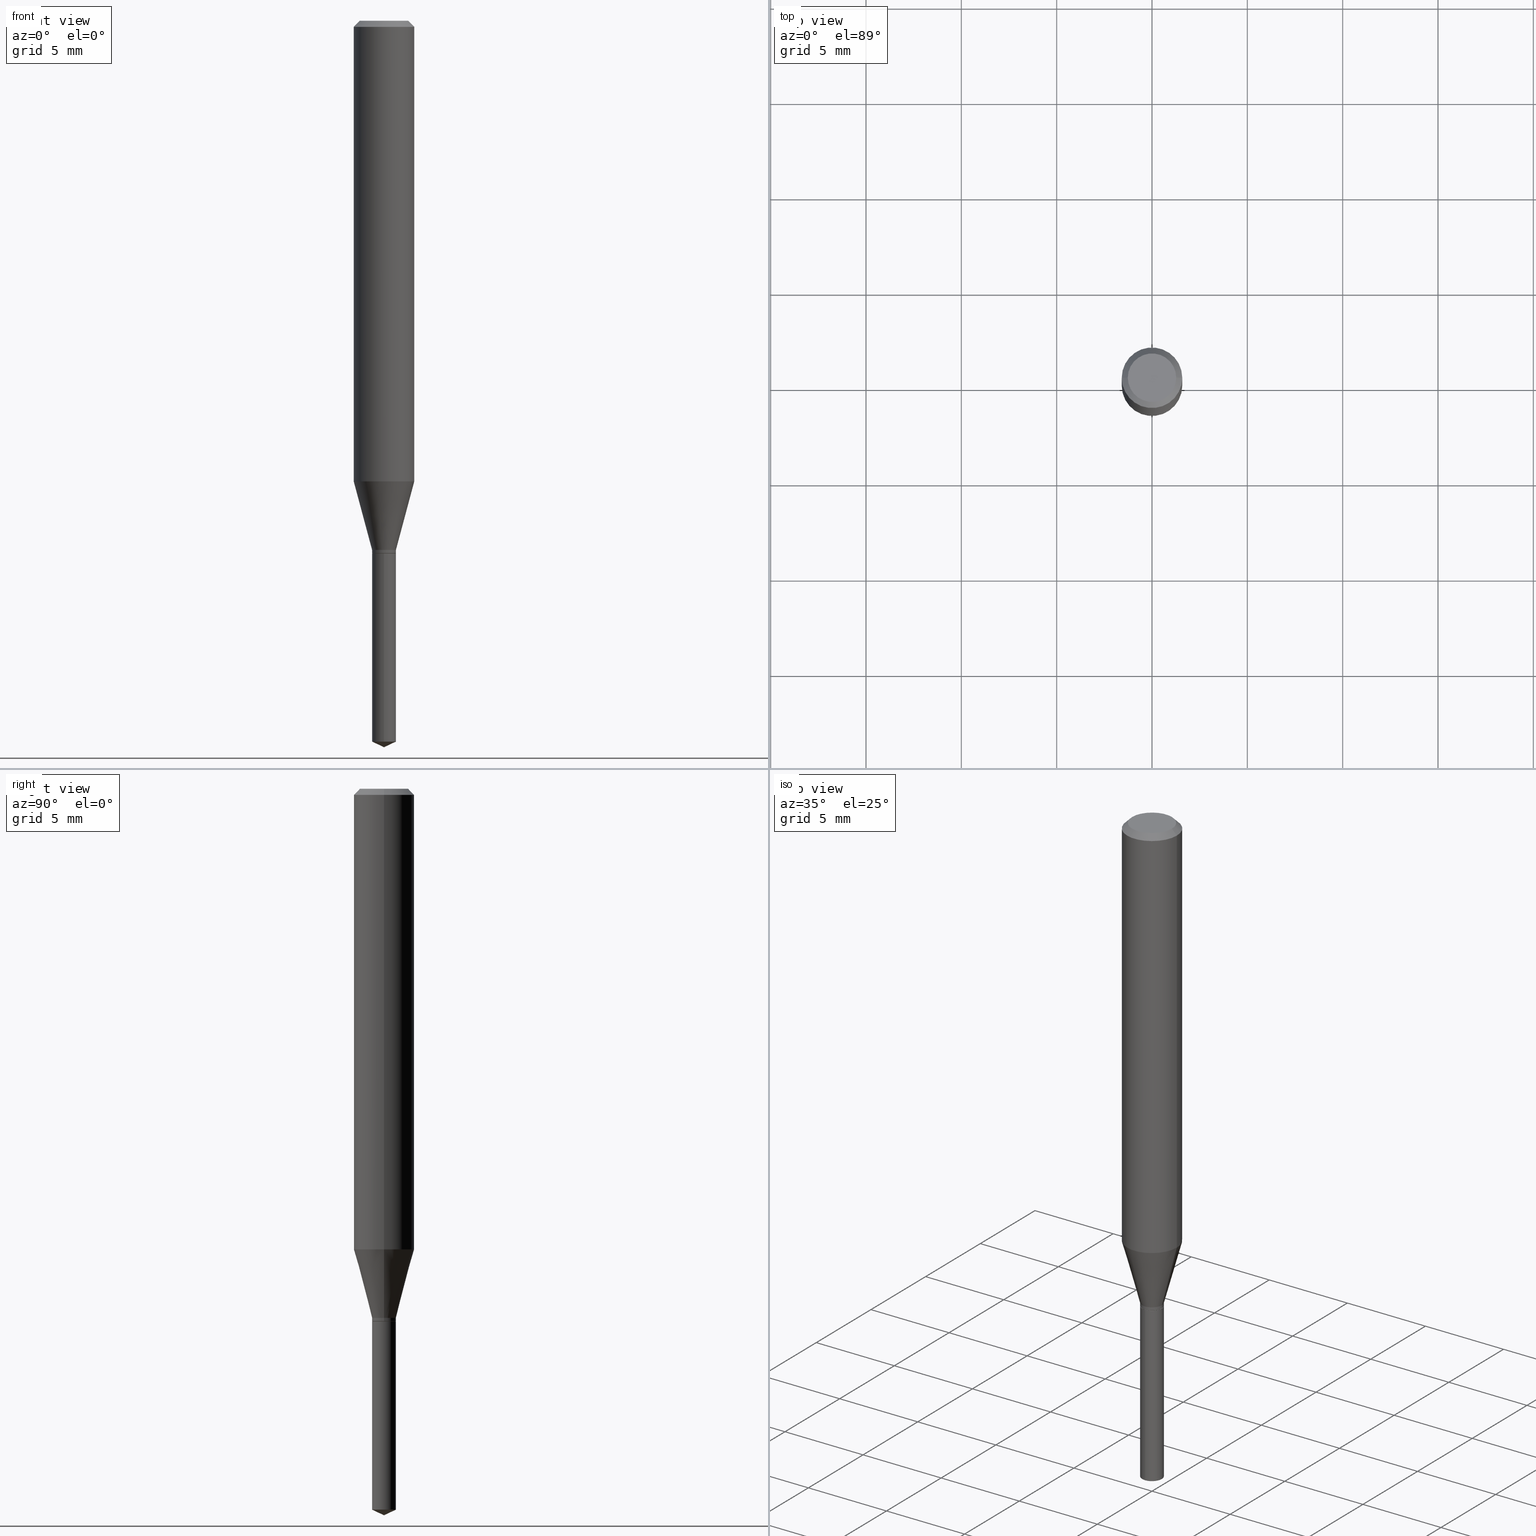
[diagram: canonical four-view strip — front | top / right | iso, engineering-drawing reading convention]
A machine part, canonical four-view strip (front | top / right | iso — engineering-drawing reading convention). The complete STEP part file that produces these views, byte-faithful:
ISO-10303-21;
HEADER;
FILE_DESCRIPTION (( 'STEP AP203' ),
    '1' );
FILE_NAME ('07163.STEP',
    '2024-04-23T19:51:17',
    ( '' ),
    ( '' ),
    'SwSTEP 2.0',
    'SolidWorks 2023',
    '' );
FILE_SCHEMA (( 'CONFIG_CONTROL_DESIGN' ));
ENDSEC;

DATA;
#1 = DATE_AND_TIME ( #10, #95 ) ;
#2 = CARTESIAN_POINT ( 'NONE',  ( -0.06250000000000012490, -2.876851681035814887E-15, -0.9511552743931396270 ) ) ;
#3 = EDGE_CURVE ( 'NONE', #320, #17, #72, .T. ) ;
#4 = DIRECTION ( 'NONE',  ( 0.000000000000000000, 0.000000000000000000, 1.000000000000000000 ) ) ;
#5 = FACE_OUTER_BOUND ( 'NONE', #406, .T. ) ;
#6 = CYLINDRICAL_SURFACE ( 'NONE', #401, 0.02460000000000000034 ) ;
#7 = CIRCLE ( 'NONE', #489, 0.02460000000000000034 ) ;
#8 = VERTEX_POINT ( 'NONE', #2 ) ;
#9 = DIRECTION ( 'NONE',  ( -2.445468806185136597E-29, 3.491481338843145583E-15, 1.000000000000000000 ) ) ;
#10 = CALENDAR_DATE ( 2024, 23, 4 ) ;
#11 = DIRECTION ( 'NONE',  ( -2.445468806185136597E-29, 3.491481338843145583E-15, 1.000000000000000000 ) ) ;
#12 = VECTOR ( 'NONE', #434, 39.37007874015748143 ) ;
#13 = DIRECTION ( 'NONE',  ( 1.000000000000000000, -6.982962677686264344E-15, 0.000000000000000000 ) ) ;
#14 = EDGE_CURVE ( 'NONE', #74, #24, #143, .T. ) ;
#15 = LINE ( 'NONE', #278, #288 ) ;
#16 = DIRECTION ( 'NONE',  ( -2.445468806185136597E-29, 3.491481338843145583E-15, 1.000000000000000000 ) ) ;
#17 = VERTEX_POINT ( 'NONE', #262 ) ;
#18 = SECURITY_CLASSIFICATION ( '', '', #452 ) ;
#19 = CC_DESIGN_PERSON_AND_ORGANIZATION_ASSIGNMENT ( #234, #261, ( #236 ) ) ;
#20 = DIRECTION ( 'NONE',  ( 1.000000000000000000, -6.982962677686261189E-15, 0.000000000000000000 ) ) ;
#21 = AXIS2_PLACEMENT_3D ( 'NONE', #259, #224, #150 ) ;
#22 = VERTEX_POINT ( 'NONE', #345 ) ;
#23 = DIRECTION ( 'NONE',  ( -2.445399690415121530E-29, 3.491580316559632610E-15, 1.000000000000000000 ) ) ;
#24 = VERTEX_POINT ( 'NONE', #418 ) ;
#25 = CARTESIAN_POINT ( 'NONE',  ( 2.690015686803650369E-29, -3.840629472727460101E-15, -1.100000000000000089 ) ) ;
#26 = ORIENTED_EDGE ( 'NONE', *, *, #446, .T. ) ;
#27 = DIRECTION ( 'NONE',  ( 0.7071067811865232589, -2.468850131082003836E-15, 0.7071067811865715536 ) ) ;
#28 = CIRCLE ( 'NONE', #308, 0.02460000000000000034 ) ;
#29 = ORIENTED_EDGE ( 'NONE', *, *, #107, .F. ) ;
#30 = ADVANCED_FACE ( 'NONE', ( #67 ), #185, .T. ) ;
#31 = ORIENTED_EDGE ( 'NONE', *, *, #88, .F. ) ;
#32 = DIRECTION ( 'NONE',  ( -2.445468806185136597E-29, 3.491481338843145583E-15, 1.000000000000000000 ) ) ;
#33 = ADVANCED_BREP_SHAPE_REPRESENTATION ( '07163', ( #420, #267, #187 ), #229 ) ;
#34 = DIRECTION ( 'NONE',  ( 6.439704144417003532E-15, 0.9063077870366483824, 0.4226182617407027164 ) ) ;
#35 = EDGE_CURVE ( 'NONE', #254, #250, #118, .T. ) ;
#36 = EDGE_LOOP ( 'NONE', ( #343, #66 ) ) ;
#37 = VECTOR ( 'NONE', #34, 39.37007874015748143 ) ;
#38 = CIRCLE ( 'NONE', #173, 0.02460000000000000034 ) ;
#39 = CARTESIAN_POINT ( 'NONE',  ( 0.02460000000000000034, -1.717808818710821634E-16, 1.199539486845800236E-30 ) ) ;
#40 = DIRECTION ( 'NONE',  ( -2.445468806185136877E-29, 3.491481338843145188E-15, 1.000000000000000000 ) ) ;
#41 = ADVANCED_FACE ( 'NONE', ( #380 ), #453, .T. ) ;
#42 = DIRECTION ( 'NONE',  ( 1.000000000000000000, -6.982962677686266711E-15, 4.876176775795935793E-29 ) ) ;
#43 = CC_DESIGN_DATE_AND_TIME_ASSIGNMENT ( #312, #321, ( #18 ) ) ;
#44 = CARTESIAN_POINT ( 'NONE',  ( -0.06250000000000001388, -1.238202993960645522E-15, -0.01250000000000008916 ) ) ;
#45 = DIRECTION ( 'NONE',  ( 1.000000000000000000, -6.982962677686261977E-15, 0.000000000000000000 ) ) ;
#46 = LINE ( 'NONE', #429, #140 ) ;
#47 = EDGE_CURVE ( 'NONE', #22, #174, #109, .T. ) ;
#48 = CIRCLE ( 'NONE', #346, 0.06250000000000001388 ) ;
#49 = DIRECTION ( 'NONE',  ( -2.445468806185136597E-29, 3.491481338843145583E-15, 1.000000000000000000 ) ) ;
#50 = APPROVAL ( #393, 'UNSPECIFIED' ) ;
#51 = SHAPE_DEFINITION_REPRESENTATION ( #352, #33 ) ;
#52 = FACE_OUTER_BOUND ( 'NONE', #334, .T. ) ;
#53 = ADVANCED_FACE ( 'NONE', ( #5 ), #6, .T. ) ;
#54 = PLANE ( 'NONE',  #450 ) ;
#55 = ORIENTED_EDGE ( 'NONE', *, *, #461, .T. ) ;
#56 = LOCAL_TIME ( 15, 51, 17.00000000000000000, #469 ) ;
#57 = FACE_OUTER_BOUND ( 'NONE', #60, .T. ) ;
#58 = VERTEX_POINT ( 'NONE', #145 ) ;
#59 = CARTESIAN_POINT ( 'NONE',  ( -0.04999999999999999584, 3.709698922520826725E-16, -1.592040838894077649E-18 ) ) ;
#60 = EDGE_LOOP ( 'NONE', ( #183, #162, #347 ) ) ;
#61 = CARTESIAN_POINT ( 'NONE',  ( 3.640123971338594615E-29, -5.197209093590707944E-15, -1.488528831609386982 ) ) ;
#62 = ORIENTED_EDGE ( 'NONE', *, *, #381, .T. ) ;
#63 = ADVANCED_FACE ( 'NONE', ( #264 ), #148, .F. ) ;
#64 = CARTESIAN_POINT ( 'NONE',  ( 0.02409999999999999989, -4.008918873259699356E-15, -1.100000000000000089 ) ) ;
#65 = VECTOR ( 'NONE', #407, 39.37007874015747433 ) ;
#66 = ORIENTED_EDGE ( 'NONE', *, *, #75, .F. ) ;
#67 = FACE_OUTER_BOUND ( 'NONE', #300, .T. ) ;
#68 = ADVANCED_FACE ( 'NONE', ( #76 ), #227, .T. ) ;
#69 = APPROVAL_DATE_TIME ( #426, #472 ) ;
#70 = DIRECTION ( 'NONE',  ( -2.445468806185136597E-29, 3.491481338843145583E-15, 1.000000000000000000 ) ) ;
#71 =( NAMED_UNIT ( * ) SI_UNIT ( $, .STERADIAN. ) SOLID_ANGLE_UNIT ( ) );
#72 = LINE ( 'NONE', #301, #369 ) ;
#73 = AXIS2_PLACEMENT_3D ( 'NONE', #354, #468, #120 ) ;
#74 = VERTEX_POINT ( 'NONE', #186 ) ;
#75 = EDGE_CURVE ( 'NONE', #201, #444, #392, .T. ) ;
#76 = FACE_OUTER_BOUND ( 'NONE', #284, .T. ) ;
#77 = CARTESIAN_POINT ( 'NONE',  ( 0.02460000000000000034, -3.986573392691103322E-15, -1.092600000000000016 ) ) ;
#78 = CC_DESIGN_APPROVAL ( #50, ( #18 ) ) ;
#79 = AXIS2_PLACEMENT_3D ( 'NONE', #388, #471, #45 ) ;
#80 = DIRECTION ( 'NONE',  ( -6.982962677686267499E-15, -1.000000000000000000, 3.520397390770535123E-15 ) ) ;
#81 = CARTESIAN_POINT ( 'NONE',  ( 0.06250000000000012490, -3.757376058241271144E-15, -0.9511552743931396270 ) ) ;
#82 = EDGE_CURVE ( 'NONE', #386, #252, #362, .T. ) ;
#83 = DIRECTION ( 'NONE',  ( 2.445468806185136597E-29, -3.491481338843145583E-15, -1.000000000000000000 ) ) ;
#84 = CARTESIAN_POINT ( 'NONE',  ( 2.688792952400557567E-29, -3.838883732058038598E-15, -1.099499999999999922 ) ) ;
#85 = ORIENTED_EDGE ( 'NONE', *, *, #331, .F. ) ;
#86 = LOCAL_TIME ( 15, 51, 17.00000000000000000, #137 ) ;
#87 = LINE ( 'NONE', #151, #425 ) ;
#88 = EDGE_CURVE ( 'NONE', #17, #8, #87, .T. ) ;
#89 = CARTESIAN_POINT ( 'NONE',  ( -0.02460000000000000034, -3.652044608442045501E-15, -1.099499999999999922 ) ) ;
#90 = ORIENTED_EDGE ( 'NONE', *, *, #221, .T. ) ;
#91 = PRODUCT_RELATED_PRODUCT_CATEGORY ( 'detail', '', ( #236 ) ) ;
#92 = DIRECTION ( 'NONE',  ( -0.7071067811865453523, 2.468850131082234184E-15, -0.7071067811865496822 ) ) ;
#93 = ORIENTED_EDGE ( 'NONE', *, *, #422, .T. ) ;
#94 = DATE_AND_TIME ( #240, #56 ) ;
#95 = LOCAL_TIME ( 15, 51, 17.00000000000000000, #350 ) ;
#96 = LINE ( 'NONE', #172, #171 ) ;
#97 = AXIS2_PLACEMENT_3D ( 'NONE', #218, #309, #389 ) ;
#98 = ORIENTED_EDGE ( 'NONE', *, *, #152, .F. ) ;
#99 = EDGE_CURVE ( 'NONE', #24, #250, #46, .T. ) ;
#100 = DIRECTION ( 'NONE',  ( -2.445468806185136597E-29, 3.491481338843145583E-15, 1.000000000000000000 ) ) ;
#101 = ORIENTED_EDGE ( 'NONE', *, *, #417, .F. ) ;
#102 = DIRECTION ( 'NONE',  ( -2.445468806185136877E-29, 3.491481338843145188E-15, 1.000000000000000000 ) ) ;
#103 = EDGE_LOOP ( 'NONE', ( #477, #397, #364, #339 ) ) ;
#104 = PERSON_AND_ORGANIZATION_ROLE ( 'creator' ) ;
#105 = PRODUCT_DEFINITION_FORMATION_WITH_SPECIFIED_SOURCE ( 'ANY', '', #236, .NOT_KNOWN. ) ;
#106 = EDGE_LOOP ( 'NONE', ( #294, #440, #360 ) ) ;
#107 = EDGE_CURVE ( 'NONE', #480, #8, #212, .T. ) ;
#108 = CARTESIAN_POINT ( 'NONE',  ( 0.000000000000000000, 0.000000000000000000, 0.000000000000000000 ) ) ;
#109 = LINE ( 'NONE', #39, #256 ) ;
#110 = DIRECTION ( 'NONE',  ( -6.982962677686265922E-15, -1.000000000000000000, 5.552536572488340164E-15 ) ) ;
#111 = CONICAL_SURFACE ( 'NONE', #219, 0.02409999999999999989, 0.7853981633974141952 ) ;
#112 = ADVANCED_FACE ( 'NONE', ( #276 ), #125, .T. ) ;
#113 = DIRECTION ( 'NONE',  ( 2.445399690415121250E-29, -3.491580316559632610E-15, -1.000000000000000000 ) ) ;
#114 = LINE ( 'NONE', #351, #188 ) ;
#115 = APPROVAL_ROLE ( '' ) ;
#116 = DIRECTION ( 'NONE',  ( -0.2588190451025213501, 5.211531920934551042E-15, 0.9659258262890682012 ) ) ;
#117 = COORDINATED_UNIVERSAL_TIME_OFFSET ( 5, 0, .BEHIND. ) ;
#118 = CIRCLE ( 'NONE', #195, 0.02460000000000000034 ) ;
#119 = DIRECTION ( 'NONE',  ( 1.000000000000000000, -6.982962677686261189E-15, 0.000000000000000000 ) ) ;
#120 = DIRECTION ( 'NONE',  ( -6.982962677686265922E-15, -1.000000000000000000, 5.552536572488340164E-15 ) ) ;
#121 = ORIENTED_EDGE ( 'NONE', *, *, #238, .F. ) ;
#122 = ADVANCED_FACE ( 'NONE', ( #158 ), #233, .T. ) ;
#123 = CARTESIAN_POINT ( 'NONE',  ( 3.056836007731442729E-31, -4.364351673553962300E-17, -0.01250000000000008916 ) ) ;
#124 = VECTOR ( 'NONE', #27, 39.37007874015748854 ) ;
#125 = CONICAL_SURFACE ( 'NONE', #231, 84.42940631927238826, 1.134464013796307125 ) ;
#126 = CARTESIAN_POINT ( 'NONE',  ( 1.747935129970210836E-16, 0.02459999999999615966, -1.100000000000000089 ) ) ;
#127 = CARTESIAN_POINT ( 'NONE',  ( 3.056836007731442729E-31, -4.364351673553962300E-17, -0.01250000000000008916 ) ) ;
#128 = ORIENTED_EDGE ( 'NONE', *, *, #184, .F. ) ;
#129 = DIRECTION ( 'NONE',  ( -1.000000000000000000, 6.982962677686265922E-15, -4.876176775795935793E-29 ) ) ;
#130 = ORIENTED_EDGE ( 'NONE', *, *, #311, .T. ) ;
#131 = ADVANCED_FACE ( 'NONE', ( #199 ), #322, .T. ) ;
#132 = CONICAL_SURFACE ( 'NONE', #490, 0.02460000000000000034, 0.2617993877991500740 ) ;
#133 = DIRECTION ( 'NONE',  ( 1.000000000000000000, -6.982962677686261977E-15, 0.000000000000000000 ) ) ;
#134 = EDGE_LOOP ( 'NONE', ( #375, #454 ) ) ;
#135 = DIRECTION ( 'NONE',  ( 1.000000000000000000, -6.982962677686264344E-15, 0.000000000000000000 ) ) ;
#136 = EDGE_LOOP ( 'NONE', ( #85, #336, #279, #327 ) ) ;
#137 = COORDINATED_UNIVERSAL_TIME_OFFSET ( 5, 0, .BEHIND. ) ;
#138 = ADVANCED_FACE ( 'NONE', ( #314 ), #203, .T. ) ;
#139 = ORIENTED_EDGE ( 'NONE', *, *, #107, .T. ) ;
#140 = VECTOR ( 'NONE', #460, 39.37007874015748143 ) ;
#141 = PERSON_AND_ORGANIZATION_ROLE ( 'creator' ) ;
#142 = ORIENTED_EDGE ( 'NONE', *, *, #82, .T. ) ;
#143 = CIRCLE ( 'NONE', #304, 0.02460000000000000034 ) ;
#144 = DIRECTION ( 'NONE',  ( -2.445468806185136597E-29, 3.491481338843145583E-15, 1.000000000000000000 ) ) ;
#145 = CARTESIAN_POINT ( 'NONE',  ( 0.06250000000000001388, -4.800786840909313294E-16, -0.01250000000000008916 ) ) ;
#146 = DIRECTION ( 'NONE',  ( 1.000000000000000000, 0.000000000000000000, 0.000000000000000000 ) ) ;
#147 = EDGE_LOOP ( 'NONE', ( #31, #90, #93, #230 ) ) ;
#148 = PLANE ( 'NONE',  #451 ) ;
#149 = CC_DESIGN_APPROVAL ( #192, ( #442 ) ) ;
#150 = DIRECTION ( 'NONE',  ( -6.982962677686265922E-15, -1.000000000000000000, 5.552536572488340164E-15 ) ) ;
#151 = CARTESIAN_POINT ( 'NONE',  ( -0.02460000000000000034, -3.639998997823036732E-15, -1.092600000000000016 ) ) ;
#152 = EDGE_CURVE ( 'NONE', #386, #58, #306, .T. ) ;
#153 =( NAMED_UNIT ( * ) PLANE_ANGLE_UNIT ( ) SI_UNIT ( $, .RADIAN. ) );
#154 = CARTESIAN_POINT ( 'NONE',  ( 2.671919217637880494E-29, -3.814792510820021060E-15, -1.092600000000000016 ) ) ;
#155 = APPROVAL_PERSON_ORGANIZATION ( #465, #472, #255 ) ;
#156 = AXIS2_PLACEMENT_3D ( 'NONE', #268, #11, #13 ) ;
#157 = PERSON ( 'UNSPECIFIED', 'UNSPECIFIED', 'UNSPECIFIED', ('UNSPECIFIED'), ('UNSPECIFIED'), ('UNSPECIFIED') ) ;
#158 = FACE_OUTER_BOUND ( 'NONE', #371, .T. ) ;
#159 = EDGE_CURVE ( 'NONE', #174, #17, #409, .T. ) ;
#160 = DIRECTION ( 'NONE',  ( -2.445468806185136597E-29, 3.491481338843145583E-15, 1.000000000000000000 ) ) ;
#161 = DIRECTION ( 'NONE',  ( -6.982962677686267499E-15, -1.000000000000000000, 3.520397390770535123E-15 ) ) ;
#162 = ORIENTED_EDGE ( 'NONE', *, *, #302, .T. ) ;
#163 = CC_DESIGN_APPROVAL ( #472, ( #105 ) ) ;
#164 = PLANE ( 'NONE',  #180 ) ;
#165 = ORIENTED_EDGE ( 'NONE', *, *, #221, .F. ) ;
#166 = DIRECTION ( 'NONE',  ( -1.000000000000000000, 6.982962677686265922E-15, 0.000000000000000000 ) ) ;
#167 = ORIENTED_EDGE ( 'NONE', *, *, #461, .F. ) ;
#168 = ADVANCED_FACE ( 'NONE', ( #275 ), #416, .T. ) ;
#169 = FACE_OUTER_BOUND ( 'NONE', #103, .T. ) ;
#170 = ORIENTED_EDGE ( 'NONE', *, *, #159, .F. ) ;
#171 = VECTOR ( 'NONE', #92, 39.37007874015748143 ) ;
#172 = CARTESIAN_POINT ( 'NONE',  ( -0.06250000000000001388, 3.927916506198521080E-16, -0.01250000000000008916 ) ) ;
#173 = AXIS2_PLACEMENT_3D ( 'NONE', #84, #160, #424 ) ;
#174 = VERTEX_POINT ( 'NONE', #77 ) ;
#175 = EDGE_CURVE ( 'NONE', #320, #22, #38, .T. ) ;
#176 = DATE_AND_TIME ( #232, #86 ) ;
#177 = ORIENTED_EDGE ( 'NONE', *, *, #175, .F. ) ;
#178 = PERSON_AND_ORGANIZATION ( #157, #439 ) ;
#179 = DIRECTION ( 'NONE',  ( -2.445468806185136597E-29, 3.491481338843145583E-15, 1.000000000000000000 ) ) ;
#180 = AXIS2_PLACEMENT_3D ( 'NONE', #370, #292, #129 ) ;
#181 = EDGE_LOOP ( 'NONE', ( #98, #167, #433, #408 ) ) ;
#182 = AXIS2_PLACEMENT_3D ( 'NONE', #382, #32, #42 ) ;
#183 = ORIENTED_EDGE ( 'NONE', *, *, #470, .F. ) ;
#184 = EDGE_CURVE ( 'NONE', #201, #320, #114, .T. ) ;
#185 = CYLINDRICAL_SURFACE ( 'NONE', #332, 0.02460000000000000034 ) ;
#186 = CARTESIAN_POINT ( 'NONE',  ( 1.747935129970210343E-16, 0.02459999999999480658, -1.488528831609386982 ) ) ;
#187 = AXIS2_PLACEMENT_3D ( 'NONE', #270, #4, #146 ) ;
#188 = VECTOR ( 'NONE', #194, 39.37007874015748854 ) ;
#189 = EDGE_CURVE ( 'NONE', #250, #254, #310, .T. ) ;
#190 = DIRECTION ( 'NONE',  ( -2.445468806185136597E-29, 3.491481338843145583E-15, 1.000000000000000000 ) ) ;
#191 = CARTESIAN_POINT ( 'NONE',  ( 3.668252923656895710E-29, -5.237152723863177100E-15, -1.500000000000000222 ) ) ;
#192 = APPROVAL ( #462, 'UNSPECIFIED' ) ;
#193 = CARTESIAN_POINT ( 'NONE',  ( 0.06250000000000001388, -4.724246415962604812E-16, -0.01250000000000008916 ) ) ;
#194 = DIRECTION ( 'NONE',  ( -0.7071067811865232589, 7.493145998870265808E-15, 0.7071067811865715536 ) ) ;
#195 = AXIS2_PLACEMENT_3D ( 'NONE', #215, #379, #373 ) ;
#196 = CARTESIAN_POINT ( 'NONE',  ( 2.671919217637880494E-29, -3.814792510820021060E-15, -1.092600000000000016 ) ) ;
#197 = EDGE_CURVE ( 'NONE', #213, #58, #355, .T. ) ;
#198 = COORDINATED_UNIVERSAL_TIME_OFFSET ( 5, 0, .BEHIND. ) ;
#199 = FACE_OUTER_BOUND ( 'NONE', #147, .T. ) ;
#200 = LINE ( 'NONE', #251, #482 ) ;
#201 = VERTEX_POINT ( 'NONE', #241 ) ;
#202 = AXIS2_PLACEMENT_3D ( 'NONE', #423, #274, #217 ) ;
#203 = CONICAL_SURFACE ( 'NONE', #348, 0.02409999999999999989, 0.7853981633974141952 ) ;
#204 = CARTESIAN_POINT ( 'NONE',  ( 2.690015686803650369E-29, -3.840629472727460101E-15, -1.100000000000000089 ) ) ;
#205 = ORIENTED_EDGE ( 'NONE', *, *, #189, .F. ) ;
#206 = DIRECTION ( 'NONE',  ( -6.982962677686265922E-15, -1.000000000000000000, 0.000000000000000000 ) ) ;
#207 = ORIENTED_EDGE ( 'NONE', *, *, #338, .F. ) ;
#208 = FACE_OUTER_BOUND ( 'NONE', #287, .T. ) ;
#209 = EDGE_LOOP ( 'NONE', ( #128, #459, #447, #177 ) ) ;
#210 = VECTOR ( 'NONE', #102, 39.37007874015748143 ) ;
#211 = DIRECTION ( 'NONE',  ( -2.445468806185136597E-29, 3.491481338843145583E-15, 1.000000000000000000 ) ) ;
#212 = CIRCLE ( 'NONE', #156, 0.06250000000000012490 ) ;
#213 = VERTEX_POINT ( 'NONE', #44 ) ;
#214 = LENGTH_MEASURE_WITH_UNIT ( LENGTH_MEASURE( 0.02539999999999999897 ), #486 );
#215 = CARTESIAN_POINT ( 'NONE',  ( 2.690015686803650369E-29, -3.840629472727460101E-15, -1.100000000000000089 ) ) ;
#216 = APPLICATION_CONTEXT ( 'configuration controlled 3d designs of mechanical parts and assemblies' ) ;
#217 = DIRECTION ( 'NONE',  ( 1.000000000000000000, -6.982962677686265922E-15, 4.875957971899673662E-29 ) ) ;
#218 = CARTESIAN_POINT ( 'NONE',  ( 3.893286209682126177E-47, -5.558580879666067980E-33, -1.592040838891559689E-18 ) ) ;
#219 = AXIS2_PLACEMENT_3D ( 'NONE', #25, #100, #443 ) ;
#220 = DIRECTION ( 'NONE',  ( 1.000000000000000000, -6.982962677686265922E-15, 0.000000000000000000 ) ) ;
#221 = EDGE_CURVE ( 'NONE', #17, #174, #7, .T. ) ;
#222 = CARTESIAN_POINT ( 'NONE',  ( 3.640123971338594615E-29, -5.197209093590707944E-15, -1.488528831609386982 ) ) ;
#223 = AXIS2_PLACEMENT_3D ( 'NONE', #463, #466, #235 ) ;
#224 = DIRECTION ( 'NONE',  ( -2.445399690415121530E-29, 3.491580316559632610E-15, 1.000000000000000000 ) ) ;
#225 = CC_DESIGN_PERSON_AND_ORGANIZATION_ASSIGNMENT ( #178, #141, ( #105 ) ) ;
#226 = UNCERTAINTY_MEASURE_WITH_UNIT (LENGTH_MEASURE( 1.000000000000000082E-05 ), #377, 'distance_accuracy_value', 'NONE');
#227 = CYLINDRICAL_SURFACE ( 'NONE', #182, 0.06250000000000006939 ) ;
#228 = DIRECTION ( 'NONE',  ( 1.000000000000000000, -6.982962677686265922E-15, 0.000000000000000000 ) ) ;
#229 =( GEOMETRIC_REPRESENTATION_CONTEXT ( 3 ) GLOBAL_UNCERTAINTY_ASSIGNED_CONTEXT ( ( #226 ) ) GLOBAL_UNIT_ASSIGNED_CONTEXT ( ( #377, #153, #71 ) ) REPRESENTATION_CONTEXT ( 'NONE', 'WORKASPACE' ) );
#230 = ORIENTED_EDGE ( 'NONE', *, *, #381, .F. ) ;
#231 = AXIS2_PLACEMENT_3D ( 'NONE', #237, #385, #80 ) ;
#232 = CALENDAR_DATE ( 2024, 23, 4 ) ;
#233 = CYLINDRICAL_SURFACE ( 'NONE', #223, 0.06250000000000006939 ) ;
#234 = PERSON_AND_ORGANIZATION ( #157, #439 ) ;
#235 = DIRECTION ( 'NONE',  ( 1.000000000000000000, -6.982962677686266711E-15, 4.876176775795935793E-29 ) ) ;
#236 = PRODUCT ( '07163', '07163', '', ( #374 ) ) ;
#237 = CARTESIAN_POINT ( 'NONE',  ( -9.260740279983036507E-28, 1.322265303911854087E-13, 37.87007874015748143 ) ) ;
#238 = EDGE_CURVE ( 'NONE', #8, #213, #15, .T. ) ;
#239 = AXIS2_PLACEMENT_3D ( 'NONE', #204, #211, #20 ) ;
#240 = CALENDAR_DATE ( 2024, 23, 4 ) ;
#241 = CARTESIAN_POINT ( 'NONE',  ( -0.02409999999999999989, -3.666739446235164682E-15, -1.100000000000000089 ) ) ;
#242 = CARTESIAN_POINT ( 'NONE',  ( 3.668099535622682715E-29, -5.237370474839449507E-15, -1.500000000000000222 ) ) ;
#243 = ORIENTED_EDGE ( 'NONE', *, *, #417, .T. ) ;
#244 = CALENDAR_DATE ( 2024, 23, 4 ) ;
#245 = ADVANCED_FACE ( 'NONE', ( #52 ), #132, .T. ) ;
#246 = CARTESIAN_POINT ( 'NONE',  ( 2.690015686803650369E-29, -3.840629472727460101E-15, -1.100000000000000089 ) ) ;
#247 = ORIENTED_EDGE ( 'NONE', *, *, #88, .T. ) ;
#248 = AXIS2_PLACEMENT_3D ( 'NONE', #123, #83, #272 ) ;
#249 = DIRECTION ( 'NONE',  ( -2.445468806185136597E-29, 3.491481338843145583E-15, 1.000000000000000000 ) ) ;
#250 = VERTEX_POINT ( 'NONE', #305 ) ;
#251 = CARTESIAN_POINT ( 'NONE',  ( 3.668099535622682155E-29, -5.237370474839448718E-15, -1.500000000000000222 ) ) ;
#252 = VERTEX_POINT ( 'NONE', #59 ) ;
#253 = CARTESIAN_POINT ( 'NONE',  ( 0.02460000000000000034, -3.986573392691103322E-15, -1.092600000000000016 ) ) ;
#254 = VERTEX_POINT ( 'NONE', #126 ) ;
#255 = APPROVAL_ROLE ( '' ) ;
#256 = VECTOR ( 'NONE', #40, 39.37007874015748143 ) ;
#257 = DIRECTION ( 'NONE',  ( -2.445468806185136877E-29, 3.491481338843145188E-15, 1.000000000000000000 ) ) ;
#258 = PERSON_AND_ORGANIZATION ( #157, #439 ) ;
#259 = CARTESIAN_POINT ( 'NONE',  ( 2.690015686803650369E-29, -3.840629472727460101E-15, -1.100000000000000089 ) ) ;
#260 = EDGE_CURVE ( 'NONE', #24, #74, #28, .T. ) ;
#261 = PERSON_AND_ORGANIZATION_ROLE ( 'design_owner' ) ;
#262 = CARTESIAN_POINT ( 'NONE',  ( -0.02460000000000000034, -3.652044608442045501E-15, -1.092600000000000016 ) ) ;
#263 = CIRCLE ( 'NONE', #280, 0.06250000000000012490 ) ;
#264 = FACE_OUTER_BOUND ( 'NONE', #134, .T. ) ;
#265 = DIRECTION ( 'NONE',  ( 1.000000000000000000, -6.982962677686266711E-15, 4.876176775795935793E-29 ) ) ;
#266 = ADVANCED_FACE ( 'NONE', ( #365 ), #111, .T. ) ;
#267 = MANIFOLD_SOLID_BREP ( 'Body-Move/Copy2[2]', #378 ) ;
#268 = CARTESIAN_POINT ( 'NONE',  ( 2.326020553366887075E-29, -3.320940890885878686E-15, -0.9511552743931396270 ) ) ;
#269 = CC_DESIGN_DATE_AND_TIME_ASSIGNMENT ( #1, #307, ( #442 ) ) ;
#270 = CARTESIAN_POINT ( 'NONE',  ( 0.000000000000000000, 0.000000000000000000, 0.000000000000000000 ) ) ;
#271 = APPROVAL_PERSON_ORGANIZATION ( #315, #50, #478 ) ;
#272 = DIRECTION ( 'NONE',  ( -1.000000000000000000, 6.982962677686265922E-15, 0.000000000000000000 ) ) ;
#273 = CIRCLE ( 'NONE', #202, 0.04999999999999999584 ) ;
#274 = DIRECTION ( 'NONE',  ( -2.445468806185136597E-29, 3.491481338843145583E-15, 1.000000000000000000 ) ) ;
#275 = FACE_OUTER_BOUND ( 'NONE', #181, .T. ) ;
#276 = FACE_OUTER_BOUND ( 'NONE', #106, .T. ) ;
#277 = EDGE_LOOP ( 'NONE', ( #26, #329, #475, #207 ) ) ;
#278 = CARTESIAN_POINT ( 'NONE',  ( -0.06250000000000006939, 4.440892098500631092E-16, -3.074334431409319267E-30 ) ) ;
#279 = ORIENTED_EDGE ( 'NONE', *, *, #99, .T. ) ;
#280 = AXIS2_PLACEMENT_3D ( 'NONE', #399, #249, #135 ) ;
#281 = CARTESIAN_POINT ( 'NONE',  ( 1.747935129970115187E-16, 0.02459999999999615966, -1.100000000000000089 ) ) ;
#282 = ADVANCED_FACE ( 'NONE', ( #57 ), #340, .T. ) ;
#283 = LINE ( 'NONE', #289, #124 ) ;
#284 = EDGE_LOOP ( 'NONE', ( #139, #483, #435, #101 ) ) ;
#285 = APPROVAL_DATE_TIME ( #94, #50 ) ;
#286 = CARTESIAN_POINT ( 'NONE',  ( -9.260740279983036507E-28, 1.322265303911854087E-13, 37.87007874015748143 ) ) ;
#287 = EDGE_LOOP ( 'NONE', ( #130, #428, #170, #487 ) ) ;
#288 = VECTOR ( 'NONE', #394, 39.37007874015748143 ) ;
#289 = CARTESIAN_POINT ( 'NONE',  ( 0.02409999999999999989, -4.008918873259699356E-15, -1.100000000000000089 ) ) ;
#290 = EDGE_LOOP ( 'NONE', ( #55, #142 ) ) ;
#291 = ADVANCED_FACE ( 'NONE', ( #169 ), #473, .T. ) ;
#292 = DIRECTION ( 'NONE',  ( 2.438088387897960049E-29, -3.491481338843145188E-15, -1.000000000000000000 ) ) ;
#293 = ORIENTED_EDGE ( 'NONE', *, *, #47, .T. ) ;
#294 = ORIENTED_EDGE ( 'NONE', *, *, #302, .F. ) ;
#295 = LOCAL_TIME ( 15, 51, 17.00000000000000000, #198 ) ;
#296 = PERSON_AND_ORGANIZATION_ROLE ( 'design_supplier' ) ;
#297 = DIRECTION ( 'NONE',  ( -2.445399690415121530E-29, 3.491580316559632610E-15, 1.000000000000000000 ) ) ;
#298 = ADVANCED_FACE ( 'NONE', ( #208 ), #367, .T. ) ;
#299 = LINE ( 'NONE', #191, #37 ) ;
#300 = EDGE_LOOP ( 'NONE', ( #404, #368, #293, #165 ) ) ;
#301 = CARTESIAN_POINT ( 'NONE',  ( -0.02460000000000000034, 1.747935129969846481E-16, -1.210058032202706883E-30 ) ) ;
#302 = EDGE_CURVE ( 'NONE', #344, #24, #200, .T. ) ;
#303 = CARTESIAN_POINT ( 'NONE',  ( 2.690015686803650369E-29, -3.840629472727460101E-15, -1.100000000000000089 ) ) ;
#304 = AXIS2_PLACEMENT_3D ( 'NONE', #222, #297, #411 ) ;
#305 = CARTESIAN_POINT ( 'NONE',  ( -1.717808818710552189E-16, -0.02460000000000384102, -1.099999999999999867 ) ) ;
#306 = LINE ( 'NONE', #193, #441 ) ;
#307 = DATE_TIME_ROLE ( 'creation_date' ) ;
#308 = AXIS2_PLACEMENT_3D ( 'NONE', #61, #405, #206 ) ;
#309 = DIRECTION ( 'NONE',  ( -2.445468806185136597E-29, 3.491481338843145583E-15, 1.000000000000000000 ) ) ;
#310 = CIRCLE ( 'NONE', #73, 0.02460000000000000034 ) ;
#311 = EDGE_CURVE ( 'NONE', #22, #320, #430, .T. ) ;
#312 = DATE_AND_TIME ( #244, #295 ) ;
#313 = DIMENSIONAL_EXPONENTS ( 1.000000000000000000, 0.000000000000000000, 0.000000000000000000, 0.000000000000000000, 0.000000000000000000, 0.000000000000000000, 0.000000000000000000 ) ;
#314 = FACE_OUTER_BOUND ( 'NONE', #209, .T. ) ;
#315 = PERSON_AND_ORGANIZATION ( #157, #439 ) ;
#316 = CC_DESIGN_PERSON_AND_ORGANIZATION_ASSIGNMENT ( #387, #104, ( #442 ) ) ;
#317 = DIRECTION ( 'NONE',  ( -2.445468806185136597E-29, 3.491481338843145583E-15, 1.000000000000000000 ) ) ;
#318 = PERSON_AND_ORGANIZATION ( #157, #439 ) ;
#319 = LINE ( 'NONE', #253, #65 ) ;
#320 = VERTEX_POINT ( 'NONE', #89 ) ;
#321 = DATE_TIME_ROLE ( 'classification_date' ) ;
#322 = CONICAL_SURFACE ( 'NONE', #79, 0.02460000000000000034, 0.2617993877991500740 ) ;
#323 = CARTESIAN_POINT ( 'NONE',  ( 2.688792952400557567E-29, -3.838883732058038598E-15, -1.099499999999999922 ) ) ;
#324 = APPLICATION_CONTEXT ( 'configuration controlled 3d designs of mechanical parts and assemblies' ) ;
#325 = ORIENTED_EDGE ( 'NONE', *, *, #422, .F. ) ;
#326 = FACE_OUTER_BOUND ( 'NONE', #290, .T. ) ;
#327 = ORIENTED_EDGE ( 'NONE', *, *, #35, .F. ) ;
#328 = DIRECTION ( 'NONE',  ( -6.328713451373348079E-15, -0.9063077870366454958, 0.4226182617407090447 ) ) ;
#329 = ORIENTED_EDGE ( 'NONE', *, *, #184, .T. ) ;
#330 = AXIS2_PLACEMENT_3D ( 'NONE', #286, #23, #161 ) ;
#331 = EDGE_CURVE ( 'NONE', #74, #254, #479, .T. ) ;
#332 = AXIS2_PLACEMENT_3D ( 'NONE', #108, #70, #265 ) ;
#333 = FACE_OUTER_BOUND ( 'NONE', #36, .T. ) ;
#334 = EDGE_LOOP ( 'NONE', ( #485, #247, #29, #325 ) ) ;
#335 = APPLICATION_PROTOCOL_DEFINITION ( 'international standard', 'config_control_design', 1994, #216 ) ;
#336 = ORIENTED_EDGE ( 'NONE', *, *, #14, .T. ) ;
#337 = PERSON_AND_ORGANIZATION ( #157, #439 ) ;
#338 = EDGE_CURVE ( 'NONE', #444, #22, #283, .T. ) ;
#339 = ORIENTED_EDGE ( 'NONE', *, *, #357, .F. ) ;
#340 = CONICAL_SURFACE ( 'NONE', #330, 84.42940631927238826, 1.134464013796307125 ) ;
#341 = APPLICATION_PROTOCOL_DEFINITION ( 'international standard', 'config_control_design', 1994, #324 ) ;
#342 = CLOSED_SHELL ( 'NONE', ( #53, #112, #282, #41, #63 ) ) ;
#343 = ORIENTED_EDGE ( 'NONE', *, *, #446, .F. ) ;
#344 = VERTEX_POINT ( 'NONE', #242 ) ;
#345 = CARTESIAN_POINT ( 'NONE',  ( 0.02460000000000000034, -4.010664613929120071E-15, -1.099499999999999922 ) ) ;
#346 = AXIS2_PLACEMENT_3D ( 'NONE', #127, #144, #220 ) ;
#347 = ORIENTED_EDGE ( 'NONE', *, *, #14, .F. ) ;
#348 = AXIS2_PLACEMENT_3D ( 'NONE', #427, #190, #119 ) ;
#349 = DIRECTION ( 'NONE',  ( 0.7071067811865453523, -7.319954787623248157E-15, -0.7071067811865496822 ) ) ;
#350 = COORDINATED_UNIVERSAL_TIME_OFFSET ( 5, 0, .BEHIND. ) ;
#351 = CARTESIAN_POINT ( 'NONE',  ( -0.02409999999999999989, -3.669388673409275883E-15, -1.100000000000000089 ) ) ;
#352 = PRODUCT_DEFINITION_SHAPE ( 'NONE', 'NONE',  #442 ) ;
#353 = CIRCLE ( 'NONE', #239, 0.02409999999999999989 ) ;
#354 = CARTESIAN_POINT ( 'NONE',  ( 2.690015686803650369E-29, -3.840629472727460101E-15, -1.100000000000000089 ) ) ;
#355 = CIRCLE ( 'NONE', #458, 0.06250000000000001388 ) ;
#356 = DIRECTION ( 'NONE',  ( 1.000000000000000000, -6.982962677686261977E-15, 0.000000000000000000 ) ) ;
#357 = EDGE_CURVE ( 'NONE', #252, #213, #96, .T. ) ;
#358 = CARTESIAN_POINT ( 'NONE',  ( 2.671919217637880494E-29, -3.814792510820021060E-15, -1.092600000000000016 ) ) ;
#359 = CARTESIAN_POINT ( 'NONE',  ( 3.056836007731442729E-31, -4.364351673553962300E-17, -0.01250000000000008916 ) ) ;
#360 = ORIENTED_EDGE ( 'NONE', *, *, #260, .F. ) ;
#361 = CC_DESIGN_SECURITY_CLASSIFICATION ( #18, ( #105 ) ) ;
#362 = CIRCLE ( 'NONE', #97, 0.04999999999999999584 ) ;
#363 = CARTESIAN_POINT ( 'NONE',  ( 0.04999999999999999584, -4.077247707424184705E-16, -1.592040838888913461E-18 ) ) ;
#364 = ORIENTED_EDGE ( 'NONE', *, *, #455, .T. ) ;
#365 = FACE_OUTER_BOUND ( 'NONE', #277, .T. ) ;
#366 = ORIENTED_EDGE ( 'NONE', *, *, #197, .F. ) ;
#367 = CYLINDRICAL_SURFACE ( 'NONE', #390, 0.02460000000000000034 ) ;
#368 = ORIENTED_EDGE ( 'NONE', *, *, #175, .T. ) ;
#369 = VECTOR ( 'NONE', #257, 39.37007874015748143 ) ;
#370 = CARTESIAN_POINT ( 'NONE',  ( 1.946643104841063088E-47, -2.779290439833033990E-33, -7.960204194457798443E-19 ) ) ;
#371 = EDGE_LOOP ( 'NONE', ( #121, #62, #243, #366 ) ) ;
#372 = ADVANCED_FACE ( 'NONE', ( #333 ), #54, .F. ) ;
#373 = DIRECTION ( 'NONE',  ( -6.982962677686265922E-15, -1.000000000000000000, 5.552536572488340164E-15 ) ) ;
#374 = MECHANICAL_CONTEXT ( 'NONE', #216, 'mechanical' ) ;
#375 = ORIENTED_EDGE ( 'NONE', *, *, #189, .T. ) ;
#376 = AXIS2_PLACEMENT_3D ( 'NONE', #323, #481, #133 ) ;
#377 =( CONVERSION_BASED_UNIT ( 'INCH', #214 ) LENGTH_UNIT ( ) NAMED_UNIT ( #313 ) );
#378 = CLOSED_SHELL ( 'NONE', ( #266, #291, #68, #245, #298, #30, #131, #122, #168, #402, #372, #138 ) ) ;
#379 = DIRECTION ( 'NONE',  ( -2.445399690415121530E-29, 3.491580316559632610E-15, 1.000000000000000000 ) ) ;
#380 = FACE_OUTER_BOUND ( 'NONE', #136, .T. ) ;
#381 = EDGE_CURVE ( 'NONE', #8, #480, #263, .T. ) ;
#382 = CARTESIAN_POINT ( 'NONE',  ( 0.000000000000000000, 0.000000000000000000, 0.000000000000000000 ) ) ;
#383 = LOCAL_TIME ( 15, 51, 17.00000000000000000, #117 ) ;
#384 = DESIGN_CONTEXT ( 'detailed design', #324, 'design' ) ;
#385 = DIRECTION ( 'NONE',  ( -2.445399690415121530E-29, 3.491580316559632610E-15, 1.000000000000000000 ) ) ;
#386 = VERTEX_POINT ( 'NONE', #363 ) ;
#387 = PERSON_AND_ORGANIZATION ( #157, #439 ) ;
#388 = CARTESIAN_POINT ( 'NONE',  ( 2.671919217637880494E-29, -3.814792510820021060E-15, -1.092600000000000016 ) ) ;
#389 = DIRECTION ( 'NONE',  ( 1.000000000000000000, -6.982962677686265922E-15, 4.875957971899673662E-29 ) ) ;
#390 = AXIS2_PLACEMENT_3D ( 'NONE', #438, #474, #476 ) ;
#391 = CARTESIAN_POINT ( 'NONE',  ( 3.056836007731442729E-31, -4.364351673553962300E-17, -0.01250000000000008916 ) ) ;
#392 = CIRCLE ( 'NONE', #432, 0.02409999999999999989 ) ;
#393 = APPROVAL_STATUS ( 'not_yet_approved' ) ;
#394 = DIRECTION ( 'NONE',  ( -2.445468806185136877E-29, 3.491481338843145188E-15, 1.000000000000000000 ) ) ;
#395 = CC_DESIGN_PERSON_AND_ORGANIZATION_ASSIGNMENT ( #318, #398, ( #18 ) ) ;
#396 = DIRECTION ( 'NONE',  ( 1.000000000000000000, -6.982962677686265922E-15, 4.876176775795935793E-29 ) ) ;
#397 = ORIENTED_EDGE ( 'NONE', *, *, #152, .T. ) ;
#398 = PERSON_AND_ORGANIZATION_ROLE ( 'classification_officer' ) ;
#399 = CARTESIAN_POINT ( 'NONE',  ( 2.326020553366887075E-29, -3.320940890885878686E-15, -0.9511552743931396270 ) ) ;
#400 = ORIENTED_EDGE ( 'NONE', *, *, #331, .T. ) ;
#401 = AXIS2_PLACEMENT_3D ( 'NONE', #414, #456, #110 ) ;
#402 = ADVANCED_FACE ( 'NONE', ( #326 ), #164, .F. ) ;
#403 = LINE ( 'NONE', #445, #210 ) ;
#404 = ORIENTED_EDGE ( 'NONE', *, *, #3, .F. ) ;
#405 = DIRECTION ( 'NONE',  ( -2.445399690415121530E-29, 3.491580316559632610E-15, 1.000000000000000000 ) ) ;
#406 = EDGE_LOOP ( 'NONE', ( #437, #400, #205, #488 ) ) ;
#407 = DIRECTION ( 'NONE',  ( 0.2588190451025213501, 1.565188264969621968E-15, 0.9659258262890682012 ) ) ;
#408 = ORIENTED_EDGE ( 'NONE', *, *, #197, .T. ) ;
#409 = CIRCLE ( 'NONE', #467, 0.02460000000000000034 ) ;
#410 = APPROVAL_STATUS ( 'not_yet_approved' ) ;
#411 = DIRECTION ( 'NONE',  ( -6.982962677686265922E-15, -1.000000000000000000, 0.000000000000000000 ) ) ;
#412 = CALENDAR_DATE ( 2024, 23, 4 ) ;
#413 = CARTESIAN_POINT ( 'NONE',  ( 2.690015686803650369E-29, -3.840629472727460101E-15, -1.100000000000000089 ) ) ;
#414 = CARTESIAN_POINT ( 'NONE',  ( 2.690015686803650369E-29, -3.840629472727460101E-15, -1.100000000000000089 ) ) ;
#415 = APPROVAL_PERSON_ORGANIZATION ( #258, #192, #115 ) ;
#416 = CONICAL_SURFACE ( 'NONE', #248, 0.06250000000000001388, 0.7853981633974452814 ) ;
#417 = EDGE_CURVE ( 'NONE', #480, #58, #403, .T. ) ;
#418 = CARTESIAN_POINT ( 'NONE',  ( -1.717808818710457772E-16, -0.02460000000000520451, -1.488528831609386982 ) ) ;
#419 = DIRECTION ( 'NONE',  ( 6.982962677686265922E-15, 1.000000000000000000, -3.491580316559632610E-15 ) ) ;
#420 = MANIFOLD_SOLID_BREP ( 'Body-Move/Copy2[1]', #342 ) ;
#421 = DIRECTION ( 'NONE',  ( 1.000000000000000000, -6.982962677686261977E-15, 0.000000000000000000 ) ) ;
#422 = EDGE_CURVE ( 'NONE', #174, #480, #319, .T. ) ;
#423 = CARTESIAN_POINT ( 'NONE',  ( 3.893286209682126177E-47, -5.558580879666067980E-33, -1.592040838891559689E-18 ) ) ;
#424 = DIRECTION ( 'NONE',  ( 1.000000000000000000, -6.982962677686261977E-15, 0.000000000000000000 ) ) ;
#425 = VECTOR ( 'NONE', #116, 39.37007874015747433 ) ;
#426 = DATE_AND_TIME ( #412, #383 ) ;
#427 = CARTESIAN_POINT ( 'NONE',  ( 2.690015686803650369E-29, -3.840629472727460101E-15, -1.100000000000000089 ) ) ;
#428 = ORIENTED_EDGE ( 'NONE', *, *, #3, .T. ) ;
#429 = CARTESIAN_POINT ( 'NONE',  ( -1.717808818710552189E-16, -0.02460000000000384102, -1.099999999999999867 ) ) ;
#430 = CIRCLE ( 'NONE', #376, 0.02460000000000000034 ) ;
#431 = DIRECTION ( 'NONE',  ( 1.000000000000000000, -6.982962677686261977E-15, 0.000000000000000000 ) ) ;
#432 = AXIS2_PLACEMENT_3D ( 'NONE', #413, #179, #449 ) ;
#433 = ORIENTED_EDGE ( 'NONE', *, *, #357, .T. ) ;
#434 = DIRECTION ( 'NONE',  ( -2.445399690415121810E-29, 3.491580316559632610E-15, 1.000000000000000000 ) ) ;
#435 = ORIENTED_EDGE ( 'NONE', *, *, #455, .F. ) ;
#436 = DIRECTION ( 'NONE',  ( 2.445468806185136597E-29, -3.491481338843145583E-15, -1.000000000000000000 ) ) ;
#437 = ORIENTED_EDGE ( 'NONE', *, *, #260, .T. ) ;
#438 = CARTESIAN_POINT ( 'NONE',  ( 0.000000000000000000, 0.000000000000000000, 0.000000000000000000 ) ) ;
#439 = ORGANIZATION ( 'UNSPECIFIED', 'UNSPECIFIED', '' ) ;
#440 = ORIENTED_EDGE ( 'NONE', *, *, #470, .T. ) ;
#441 = VECTOR ( 'NONE', #349, 39.37007874015748143 ) ;
#442 = PRODUCT_DEFINITION ( 'UNKNOWN', '', #105, #384 ) ;
#443 = DIRECTION ( 'NONE',  ( 1.000000000000000000, -6.982962677686261189E-15, 0.000000000000000000 ) ) ;
#444 = VERTEX_POINT ( 'NONE', #64 ) ;
#445 = CARTESIAN_POINT ( 'NONE',  ( 0.06250000000000006939, -4.364351673553921624E-16, 3.047610484872463374E-30 ) ) ;
#446 = EDGE_CURVE ( 'NONE', #444, #201, #353, .T. ) ;
#447 = ORIENTED_EDGE ( 'NONE', *, *, #338, .T. ) ;
#448 = APPROVAL_DATE_TIME ( #176, #192 ) ;
#449 = DIRECTION ( 'NONE',  ( 1.000000000000000000, -6.982962677686261189E-15, 0.000000000000000000 ) ) ;
#450 = AXIS2_PLACEMENT_3D ( 'NONE', #246, #484, #396 ) ;
#451 = AXIS2_PLACEMENT_3D ( 'NONE', #303, #113, #419 ) ;
#452 = SECURITY_CLASSIFICATION_LEVEL ( 'unclassified' ) ;
#453 = CYLINDRICAL_SURFACE ( 'NONE', #21, 0.02460000000000000034 ) ;
#454 = ORIENTED_EDGE ( 'NONE', *, *, #35, .T. ) ;
#455 = EDGE_CURVE ( 'NONE', #58, #213, #48, .T. ) ;
#456 = DIRECTION ( 'NONE',  ( -2.445399690415121530E-29, 3.491580316559632610E-15, 1.000000000000000000 ) ) ;
#457 = AXIS2_PLACEMENT_3D ( 'NONE', #359, #436, #166 ) ;
#458 = AXIS2_PLACEMENT_3D ( 'NONE', #391, #49, #228 ) ;
#459 = ORIENTED_EDGE ( 'NONE', *, *, #75, .T. ) ;
#460 = DIRECTION ( 'NONE',  ( -2.445399690415121810E-29, 3.491580316559632610E-15, 1.000000000000000000 ) ) ;
#461 = EDGE_CURVE ( 'NONE', #252, #386, #273, .T. ) ;
#462 = APPROVAL_STATUS ( 'not_yet_approved' ) ;
#463 = CARTESIAN_POINT ( 'NONE',  ( 0.000000000000000000, 0.000000000000000000, 0.000000000000000000 ) ) ;
#464 = CC_DESIGN_PERSON_AND_ORGANIZATION_ASSIGNMENT ( #337, #296, ( #105 ) ) ;
#465 = PERSON_AND_ORGANIZATION ( #157, #439 ) ;
#466 = DIRECTION ( 'NONE',  ( -2.445468806185136597E-29, 3.491481338843145583E-15, 1.000000000000000000 ) ) ;
#467 = AXIS2_PLACEMENT_3D ( 'NONE', #154, #9, #431 ) ;
#468 = DIRECTION ( 'NONE',  ( -2.445399690415121530E-29, 3.491580316559632610E-15, 1.000000000000000000 ) ) ;
#469 = COORDINATED_UNIVERSAL_TIME_OFFSET ( 5, 0, .BEHIND. ) ;
#470 = EDGE_CURVE ( 'NONE', #344, #74, #299, .T. ) ;
#471 = DIRECTION ( 'NONE',  ( -2.445468806185136597E-29, 3.491481338843145583E-15, 1.000000000000000000 ) ) ;
#472 = APPROVAL ( #410, 'UNSPECIFIED' ) ;
#473 = CONICAL_SURFACE ( 'NONE', #457, 0.06250000000000001388, 0.7853981633974452814 ) ;
#474 = DIRECTION ( 'NONE',  ( -2.445468806185136597E-29, 3.491481338843145583E-15, 1.000000000000000000 ) ) ;
#475 = ORIENTED_EDGE ( 'NONE', *, *, #311, .F. ) ;
#476 = DIRECTION ( 'NONE',  ( 1.000000000000000000, -6.982962677686266711E-15, 4.876176775795935793E-29 ) ) ;
#477 = ORIENTED_EDGE ( 'NONE', *, *, #82, .F. ) ;
#478 = APPROVAL_ROLE ( '' ) ;
#479 = LINE ( 'NONE', #281, #12 ) ;
#480 = VERTEX_POINT ( 'NONE', #81 ) ;
#481 = DIRECTION ( 'NONE',  ( -2.445468806185136597E-29, 3.491481338843145583E-15, 1.000000000000000000 ) ) ;
#482 = VECTOR ( 'NONE', #328, 39.37007874015748143 ) ;
#483 = ORIENTED_EDGE ( 'NONE', *, *, #238, .T. ) ;
#484 = DIRECTION ( 'NONE',  ( -2.438088387897960049E-29, 3.491481338843145188E-15, 1.000000000000000000 ) ) ;
#485 = ORIENTED_EDGE ( 'NONE', *, *, #159, .T. ) ;
#486 =( LENGTH_UNIT ( ) NAMED_UNIT ( * ) SI_UNIT ( $, .METRE. ) );
#487 = ORIENTED_EDGE ( 'NONE', *, *, #47, .F. ) ;
#488 = ORIENTED_EDGE ( 'NONE', *, *, #99, .F. ) ;
#489 = AXIS2_PLACEMENT_3D ( 'NONE', #196, #317, #356 ) ;
#490 = AXIS2_PLACEMENT_3D ( 'NONE', #358, #16, #421 ) ;
ENDSEC;
END-ISO-10303-21;
